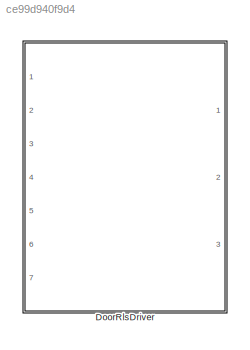
MODEL slx_ce99d940f9d4
KIND library
CONFIG AbsTol = auto
CONFIG EnableMultiTasking = off
CONFIG FixedStep = auto
CONFIG MaxStep = auto
CONFIG MinStep = auto
CONFIG RelTol = 1e-3
CONFIG SampleTimeConstraint = Unconstrained
CONFIG SolverName = VariableStepAuto
CONFIG StartTime = 0.0
CONFIG StopTime = 10.0
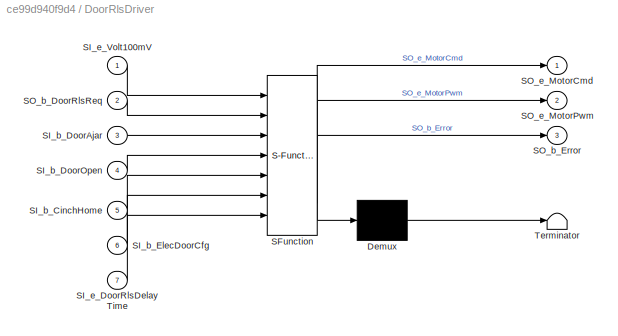
BLOCK [SubSystem] DoorRlsDriver
  ErrorFcn = Stateflow.Translate.translate
  PermitHierarchicalResolution = ExplicitOnly
  Ports = [7, 3]
  RequestExecContextInheritance = off
  SFBlockType = Chart
  TreatAsAtomicUnit = on
BLOCK [Demux] DoorRlsDriver/ Demux 
  Outputs = 1
  Ports = [1, 1]
BLOCK [S-Function] DoorRlsDriver/ SFunction 
  EnableBusSupport = on
  FunctionName = sf_sfun
  PortCounts = [7 4]
  Ports = [7, 4]
  SFcnIsStateOwnerBlock = off
  SFunctionDeploymentMode = off
  Tag = Stateflow S-Function 19
BLOCK [Terminator] DoorRlsDriver/ Terminator 
BLOCK [Inport] DoorRlsDriver/SI_b_CinchHome
  Port = 5
BLOCK [Inport] DoorRlsDriver/SI_b_DoorAjar
  Port = 3
BLOCK [Inport] DoorRlsDriver/SI_b_DoorOpen
  Port = 4
BLOCK [Inport] DoorRlsDriver/SI_b_ElecDoorCfg
  Port = 6
BLOCK [Inport] DoorRlsDriver/SI_e_DoorRlsDelayTime
  Port = 7
BLOCK [Inport] DoorRlsDriver/SI_e_Volt100mV
BLOCK [Inport] DoorRlsDriver/SO_b_DoorRlsReq
  Port = 2
BLOCK [Outport] DoorRlsDriver/SO_b_Error
  Port = 3
BLOCK [Outport] DoorRlsDriver/SO_e_MotorCmd
BLOCK [Outport] DoorRlsDriver/SO_e_MotorPwm
  Port = 2
CHART DoorRlsDriver states=32 transitions=56
  STATE_LABEL 'PowerOn\nen:\n/* 上电释放电机执行一次复位 */\nSO_e_MotorCmd = 2;\nSO_e_MotorPwm = 100;\n'
  STATE_LABEL 'SO_e_MotorCmd\n0: Stop\n1: Rls (A:1 B:0)\n2: Reset (A:0 B:1)\n'
  STATE_LABEL 'y = GetPwm(x)'
  STATE_LABEL '{y = (x * 100 / SI_e_Volt100mV);}\n/* 扩大100倍，浮点转整型 */'
  STATE_LABEL '[y > 100 || SI_e_Volt100mV == 0]'
  STATE_LABEL '{y = 100;}'
  STATE_LABEL 'Normal'
  STATE_LABEL 'NonElectricDoor'
  STATE_LABEL 'MainProgress'
  STATE_LABEL 'Release\nen:\nSL_e_CycleCount = 0;\n\n'
  STATE_LABEL 'Delay\n/* 无框车门电释放延时 */'
  STATE_LABEL 'Step1_Ajar\nen:\nSO_e_MotorCmd = 1;\nSO_e_MotorPwm = GetPwm(105);'
  STATE_LABEL 'Check\nen:\nSO_e_MotorCmd = 0;\nSO_e_MotorPwm = 0;'
  STATE_LABEL 'Step2_Open'
  STATE_LABEL 'Idle\nen:\nSO_e_MotorCmd = 0;\nSO_e_MotorPwm = 0;'
  STATE_LABEL 'LastCheck\n'
  STATE_LABEL '[before(270, tick) &&...\nSI_b_DoorOpen == 1]\n{SO_b_Error = 0;}'
  STATE_LABEL '[after(300, tick)]'
  STATE_LABEL 'Stall_Handle\nen:\nSO_e_MotorCmd = 1;\nSO_e_MotorPwm = 100;\nSL_e_CycleCount++;'
  STATE_LABEL 'Reset\nen:\nSO_e_MotorCmd = 2;\nSO_e_MotorPwm = GetPwm(70);'
  STATE_LABEL '[after(30, tick)]'
  STATE_LABEL '[after(5, tick) &&...\nSI_b_DoorAjar == 1]'
  STATE_LABEL 'after(SL_e_DoorRlsDelayTime, tick)'
  STATE_LABEL '[after(30, tick)]'
  STATE_LABEL '[after(5, tick) &&...\nSI_b_DoorAjar == 0 &&...\nSL_e_CycleCount < 3]'
  STATE_LABEL '[after(5, tick) &&...\nSI_b_DoorAjar == 0 &&...\nSL_e_CycleCount >= 3]\n{SO_b_Error = 1;}'
  STATE_LABEL 'Idle\nen:\nSO_e_MotorCmd = 0;\nSO_e_MotorPwm = 0;\n\n'
  STATE_LABEL '[SO_b_DoorRlsReq == 1]\n{SL_e_DoorRlsDelayTime = SI_e_DoorRlsDelayTime;}'
  STATE_LABEL '[after(30, tick)]'
  STATE_LABEL 'ElectricDoor'
  STATE_LABEL 'MainProgress'
  STATE_LABEL 'Release\nen:\nSL_e_CycleCount = 0;\n\n\n'
  STATE_LABEL 'Step2_Open'
  STATE_LABEL 'Idle\nen:\nSO_e_MotorCmd = 0;\nSO_e_MotorPwm = 0;'
  STATE_LABEL 'Fail\nen:\nSO_b_Error = 1;'
  STATE_LABEL 'LastCheck\n'
  STATE_LABEL 'Ice_Break'
  STATE_LABEL 'Fail1\nen:\nSO_b_Error = 1;'
  STATE_LABEL 'Success\nen:\nSO_b_Error = 0;'
  STATE_LABEL '[before(270, tick) &&...\nSI_b_DoorOpen == 1]\n{SO_b_Error = 0;}'
CHART  states=0 transitions=0
